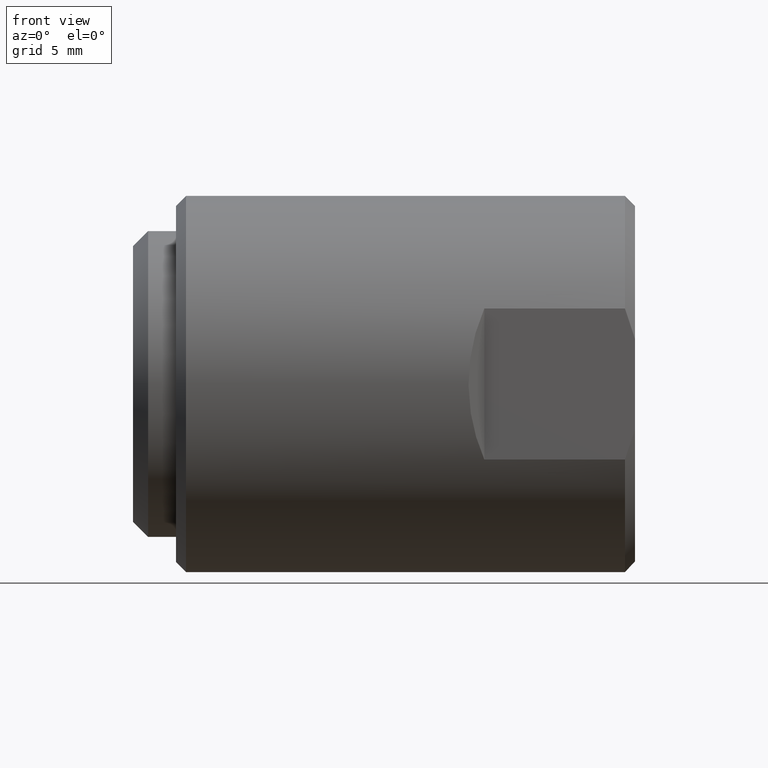
[diagram: clean part render]
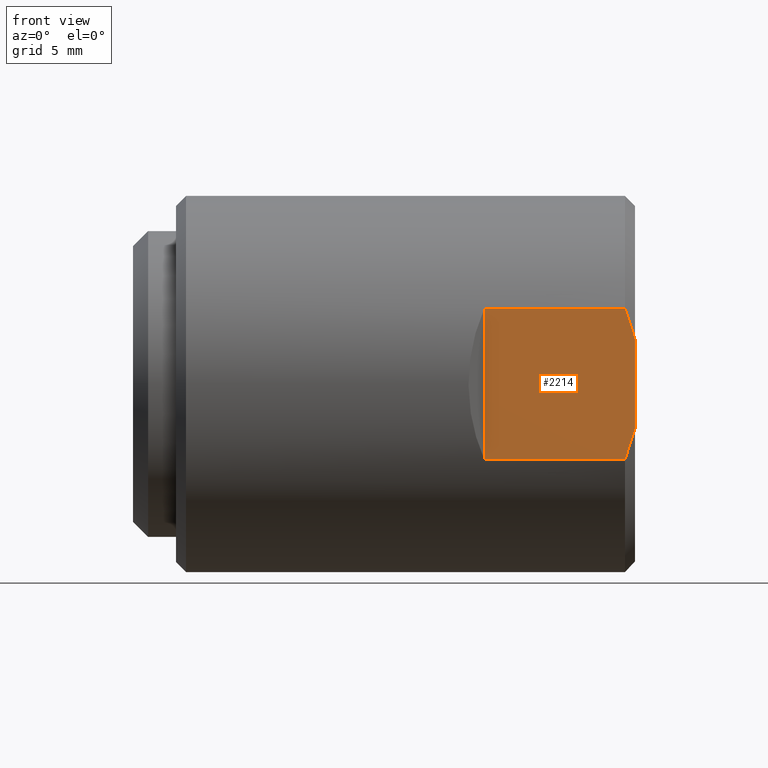
[diagram: same view with one face highlighted and labeled with its STEP entity id]
A machine part, front view. The second image highlights one B-rep face of the part: STEP entity #2214.
In plain terms, the highlighted planar face has unit normal (0, 1, 0).
Its self-contained STEP definition (entity closure, byte-faithful):
#598 = ORIENTED_EDGE ( 'NONE', *, *, #7052, .T. ) ;
#898 = VERTEX_POINT ( 'NONE', #7551 ) ;
#945 = CARTESIAN_POINT ( 'NONE',  ( 0.7807499999999999440, -0.3430000000000000271, -0.3744999999999999996 ) ) ;
#948 = ORIENTED_EDGE ( 'NONE', *, *, #2530, .T. ) ;
#1122 = CARTESIAN_POINT ( 'NONE',  ( 0.0000000000000000000, -0.3430000000000000271, -0.1503371211644016492 ) ) ;
#1201 = VERTEX_POINT ( 'NONE', #8078 ) ;
#1393 = CARTESIAN_POINT ( 'NONE',  ( 0.4807500000000000662, -0.3430000000000000271, -0.3744999999999999996 ) ) ;
#1407 = ORIENTED_EDGE ( 'NONE', *, *, #8537, .T. ) ;
#1504 = CARTESIAN_POINT ( 'NONE',  ( 0.7607499999999999263, -0.3430000000000000271, -0.1503371211644016492 ) ) ;
#1792 = CARTESIAN_POINT ( 'NONE',  ( 0.4807500000000000662, -0.3430000000000000271, 0.1503371211644017047 ) ) ;
#1797 = CARTESIAN_POINT ( 'NONE',  ( 0.0000000000000000000, -0.3430000000000000271, 0.1503371211644016492 ) ) ;
#2214 = ADVANCED_FACE ( 'NONE', ( #5502 ), #4729, .F. ) ;
#2296 = B_SPLINE_CURVE_WITH_KNOTS ( 'NONE', 3,
 ( #2452, #5791, #3208, #10349 ),
 .UNSPECIFIED., .F., .F.,
 ( 4, 4 ),
 ( 0.02532600727109378044, 0.02695002695537465631 ),
 .UNSPECIFIED. ) ;
#2452 = CARTESIAN_POINT ( 'NONE',  ( 0.7807499999999999440, -0.3430000000000000271, 0.08956143143116906957 ) ) ;
#2530 = EDGE_CURVE ( 'NONE', #898, #9541, #10651, .T. ) ;
#2806 = EDGE_LOOP ( 'NONE', ( #7906, #1407, #948, #598, #9722, #3566 ) ) ;
#2992 = VERTEX_POINT ( 'NONE', #10738 ) ;
#3208 = CARTESIAN_POINT ( 'NONE',  ( 0.7687391776060378268, -0.3430000000000000271, 0.1304355360449864221 ) ) ;
#3318 = CARTESIAN_POINT ( 'NONE',  ( 0.7754860745239339215, -0.3430000000000000271, -0.1103969802990938665 ) ) ;
#3375 = CARTESIAN_POINT ( 'NONE',  ( 0.7686738325619770773, -0.3430000000000000271, -0.1305983149967929469 ) ) ;
#3566 = ORIENTED_EDGE ( 'NONE', *, *, #9470, .F. ) ;
#4729 = PLANE ( 'NONE',  #8729 ) ;
#4921 = B_SPLINE_CURVE_WITH_KNOTS ( 'NONE', 3,
 ( #1504, #3375, #3318, #6604 ),
 .UNSPECIFIED., .F., .F.,
 ( 4, 4 ),
 ( 0.01910530815203981617, 0.02072917481132930534 ),
 .UNSPECIFIED. ) ;
#5480 = EDGE_CURVE ( 'NONE', #1201, #7611, #7230, .T. ) ;
#5502 = FACE_OUTER_BOUND ( 'NONE', #2806, .T. ) ;
#5616 = DIRECTION ( 'NONE',  ( 0.0000000000000000000, -0.0000000000000000000, 1.000000000000000000 ) ) ;
#5791 = CARTESIAN_POINT ( 'NONE',  ( 0.7755398379059900149, -0.3430000000000000271, 0.1101841753155846509 ) ) ;
#5833 = EDGE_CURVE ( 'NONE', #8012, #2992, #10732, .T. ) ;
#6604 = CARTESIAN_POINT ( 'NONE',  ( 0.7807499999999999440, -0.3430000000000000271, -0.08956143143116906957 ) ) ;
#7052 = EDGE_CURVE ( 'NONE', #9541, #1201, #2296, .T. ) ;
#7230 = LINE ( 'NONE', #1797, #7596 ) ;
#7271 = DIRECTION ( 'NONE',  ( 1.000000000000000000, 0.0000000000000000000, 0.0000000000000000000 ) ) ;
#7551 = CARTESIAN_POINT ( 'NONE',  ( 0.7807499999999999440, -0.3430000000000000271, -0.08956143143116906957 ) ) ;
#7596 = VECTOR ( 'NONE', #10809, 39.37007874015748143 ) ;
#7611 = VERTEX_POINT ( 'NONE', #1792 ) ;
#7779 = CARTESIAN_POINT ( 'NONE',  ( 0.7807499999999999440, -0.3430000000000000271, -0.3744999999999999996 ) ) ;
#7906 = ORIENTED_EDGE ( 'NONE', *, *, #5833, .T. ) ;
#7986 = VECTOR ( 'NONE', #8890, 39.37007874015748143 ) ;
#8012 = VERTEX_POINT ( 'NONE', #9789 ) ;
#8059 = CARTESIAN_POINT ( 'NONE',  ( 0.7807499999999999440, -0.3430000000000000271, 0.08956143143116906957 ) ) ;
#8078 = CARTESIAN_POINT ( 'NONE',  ( 0.7607499999999999263, -0.3430000000000000271, 0.1503371211644016492 ) ) ;
#8306 = DIRECTION ( 'NONE',  ( 0.0000000000000000000, 1.000000000000000000, 0.0000000000000000000 ) ) ;
#8528 = DIRECTION ( 'NONE',  ( -0.0000000000000000000, -0.0000000000000000000, 1.000000000000000000 ) ) ;
#8537 = EDGE_CURVE ( 'NONE', #2992, #898, #4921, .T. ) ;
#8729 = AXIS2_PLACEMENT_3D ( 'NONE', #945, #8306, #5616 ) ;
#8890 = DIRECTION ( 'NONE',  ( -0.0000000000000000000, -0.0000000000000000000, 1.000000000000000000 ) ) ;
#9292 = LINE ( 'NONE', #1393, #11131 ) ;
#9470 = EDGE_CURVE ( 'NONE', #8012, #7611, #9292, .T. ) ;
#9541 = VERTEX_POINT ( 'NONE', #8059 ) ;
#9722 = ORIENTED_EDGE ( 'NONE', *, *, #5480, .T. ) ;
#9789 = CARTESIAN_POINT ( 'NONE',  ( 0.4807500000000000662, -0.3430000000000000271, -0.1503371211644016492 ) ) ;
#10349 = CARTESIAN_POINT ( 'NONE',  ( 0.7607499999999999263, -0.3430000000000000271, 0.1503371211644016492 ) ) ;
#10423 = VECTOR ( 'NONE', #7271, 39.37007874015748143 ) ;
#10651 = LINE ( 'NONE', #7779, #7986 ) ;
#10732 = LINE ( 'NONE', #1122, #10423 ) ;
#10738 = CARTESIAN_POINT ( 'NONE',  ( 0.7607499999999999263, -0.3430000000000000271, -0.1503371211644016492 ) ) ;
#10809 = DIRECTION ( 'NONE',  ( -1.000000000000000000, -0.0000000000000000000, -0.0000000000000000000 ) ) ;
#11131 = VECTOR ( 'NONE', #8528, 39.37007874015748143 ) ;